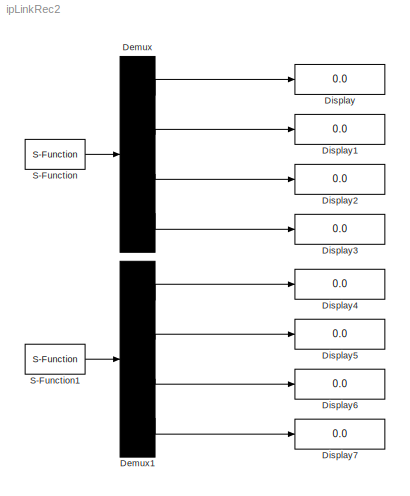
MODEL ipLinkRec2
KIND model
BLOCK [Demux] Demux
  DisplayOption = bar
  Ports = [1, 4]
  SID = 31
BLOCK [Demux] Demux1
  DisplayOption = bar
  Ports = [1, 4]
  SID = 47
BLOCK [Display] Display
  Decimation = 1
  Lockdown = off
  Ports = [1]
  SID = 29
BLOCK [Display] Display1
  Decimation = 1
  Lockdown = off
  Ports = [1]
  SID = 32
BLOCK [Display] Display2
  Decimation = 1
  Lockdown = off
  Ports = [1]
  SID = 33
BLOCK [Display] Display3
  Decimation = 1
  Lockdown = off
  Ports = [1]
  SID = 34
BLOCK [Display] Display4
  Decimation = 1
  Lockdown = off
  Ports = [1]
  SID = 48
BLOCK [Display] Display5
  Decimation = 1
  Lockdown = off
  Ports = [1]
  SID = 49
BLOCK [Display] Display6
  Decimation = 1
  Lockdown = off
  Ports = [1]
  SID = 50
BLOCK [Display] Display7
  Decimation = 1
  Lockdown = off
  Ports = [1]
  SID = 51
BLOCK [S-Function] S-Function
  EnableBusSupport = off
  FunctionName = fromIp
  Parameters = '6665' 0
  Ports = [0, 1]
  SID = 1
BLOCK [S-Function] S-Function1
  EnableBusSupport = off
  FunctionName = fromIp
  Parameters = '6666' 3
  Ports = [0, 1]
  SID = 52
LINE Demux1:1 -> Display4:1
LINE Demux1:2 -> Display5:1
LINE Demux1:3 -> Display6:1
LINE Demux1:4 -> Display7:1
LINE Demux:1 -> Display:1
LINE Demux:2 -> Display1:1
LINE Demux:3 -> Display2:1
LINE Demux:4 -> Display3:1
LINE S-Function1:1 -> Demux1:1
LINE S-Function:1 -> Demux:1
